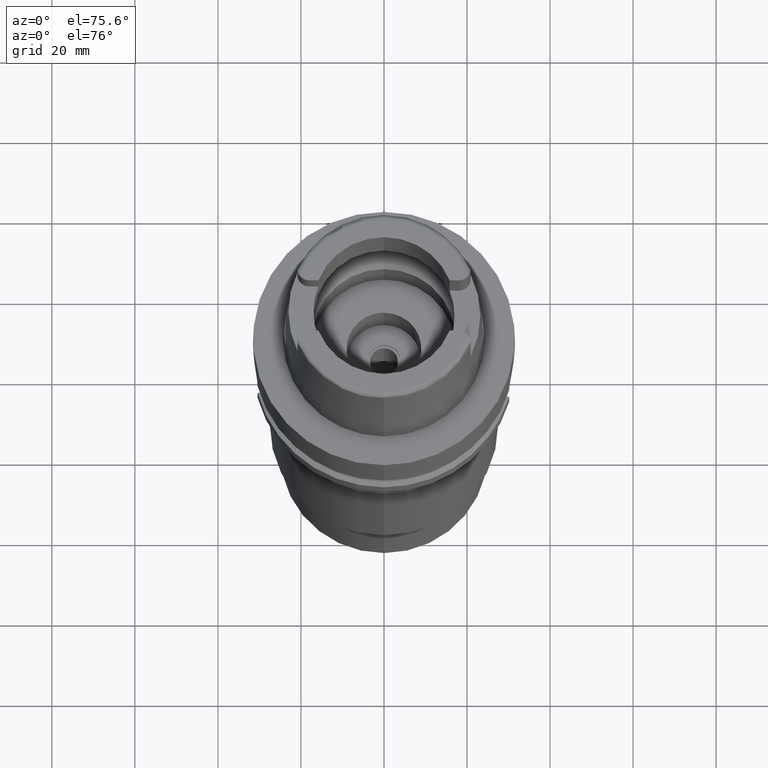
[diagram: clean part render]
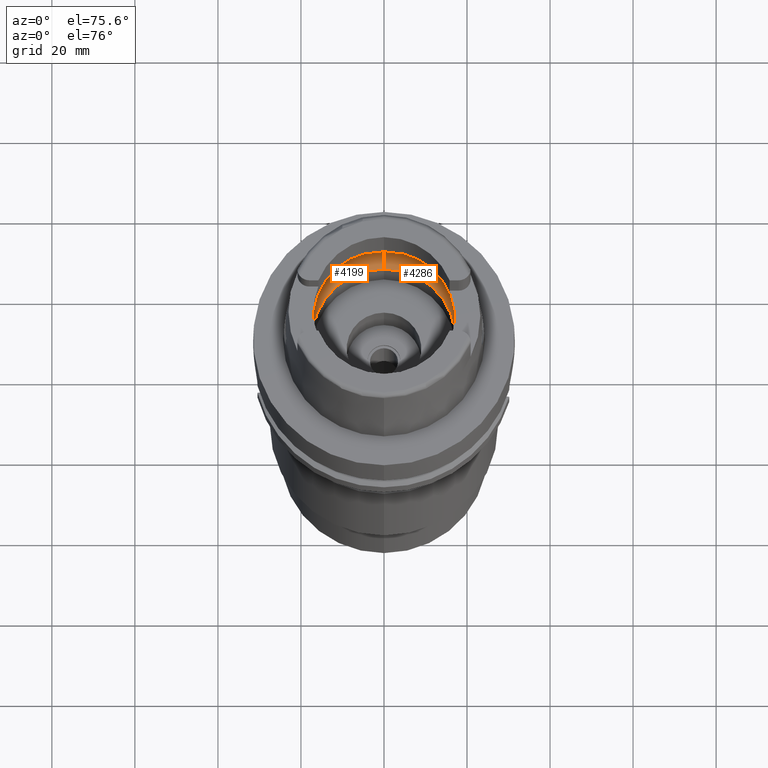
[diagram: same view with one multi-face feature highlighted, each face labeled with its STEP entity id]
A machine part, auxiliary view. The highlighted faces form ONE feature: a constant-radius fillet chain: 2 tangent blend faces with common blend radius 8 mm. The faces share edges in the B-rep.
Their STEP definitions:
[1] entity #4199 (Torus):
#2083=CARTESIAN_POINT('',(-1.984575864666E1,-2.479085262491E0,
6.186348233825E0));
#2084=CARTESIAN_POINT('',(-1.987369637762E1,-2.255436050342E0,
5.989292765742E0));
#2085=CARTESIAN_POINT('',(-1.991331581871E1,-1.759133185383E0,
5.647057889337E0));
#2086=CARTESIAN_POINT('',(-1.994018615095E1,-9.060425565455E-1,
5.323295534197E0));
#2087=CARTESIAN_POINT('',(-1.994501428476E1,-3.022936309386E-1,5.25E0));
#2088=CARTESIAN_POINT('',(-1.994501428476E1,0.E0,5.25E0));
#2093=CARTESIAN_POINT('',(-1.994501428476E1,0.E0,5.25E0));
#2094=CARTESIAN_POINT('',(-1.994501428476E1,3.022931930043E-1,5.25E0));
#2095=CARTESIAN_POINT('',(-1.994018614423E1,9.060414364937E-1,
5.323295523152E0));
#2096=CARTESIAN_POINT('',(-1.991331601589E1,1.759129035713E0,5.647055777419E0));
#2097=CARTESIAN_POINT('',(-1.987369656375E1,2.255434560347E0,5.989291452920E0));
#2098=CARTESIAN_POINT('',(-1.984575864666E1,2.479085262491E0,6.186348233825E0));
#2103=CARTESIAN_POINT('',(0.E0,0.E0,6.186348233825E0));
#2104=DIRECTION('',(0.E0,0.E0,-1.E0));
#2105=DIRECTION('',(-9.922879323328E-1,1.239542631245E-1,0.E0));
#2106=AXIS2_PLACEMENT_3D('',#2103,#2104,#2105);
#2111=CARTESIAN_POINT('',(0.E0,0.E0,1.500000000001E-1));
#2112=DIRECTION('',(0.E0,0.E0,1.E0));
#2113=DIRECTION('',(0.E0,1.E0,0.E0));
#2114=AXIS2_PLACEMENT_3D('',#2111,#2112,#2113);
#2119=CARTESIAN_POINT('',(0.E0,-1.2E1,6.186348233825E0));
#2120=DIRECTION('',(-1.E0,0.E0,0.E0));
#2121=DIRECTION('',(0.E0,-6.5625E-1,-7.545435292281E-1));
#2122=AXIS2_PLACEMENT_3D('',#2119,#2120,#2121);
#2127=CARTESIAN_POINT('',(0.E0,0.E0,6.186348233825E0));
#2128=DIRECTION('',(0.E0,0.E0,-1.E0));
#2129=DIRECTION('',(0.E0,-1.E0,0.E0));
#2130=AXIS2_PLACEMENT_3D('',#2127,#2128,#2129);
#2153=CARTESIAN_POINT('',(-1.984575864666E1,-2.479085262491E0,
6.186348233825E0));
#2253=CARTESIAN_POINT('',(0.E0,1.2E1,6.186348233825E0));
#2254=DIRECTION('',(1.E0,0.E0,0.E0));
#2255=DIRECTION('',(0.E0,6.5625E-1,-7.545435292281E-1));
#2256=AXIS2_PLACEMENT_3D('',#2253,#2254,#2255);
#2429=VERTEX_POINT('',#2153);
#2430=CARTESIAN_POINT('',(0.E0,-2.E1,6.186348233825E0));
#2431=VERTEX_POINT('',#2430);
#2432=CARTESIAN_POINT('',(0.E0,2.E1,6.186348233825E0));
#2433=VERTEX_POINT('',#2432);
#2434=CARTESIAN_POINT('',(-1.984575864666E1,2.479085262490E0,6.186348233825E0));
#2435=VERTEX_POINT('',#2434);
#2436=CARTESIAN_POINT('',(-1.994501428476E1,0.E0,5.25E0));
#2437=VERTEX_POINT('',#2436);
#2442=CARTESIAN_POINT('',(0.E0,1.725E1,1.500000000001E-1));
#2443=VERTEX_POINT('',#2442);
#2444=CARTESIAN_POINT('',(0.E0,-1.725E1,1.500000000001E-1));
#2445=VERTEX_POINT('',#2444);
#4179=CARTESIAN_POINT('',(0.E0,0.E0,6.186348233825E0));
#4180=DIRECTION('',(0.E0,0.E0,1.E0));
#4181=DIRECTION('',(0.E0,1.E0,0.E0));
#4182=AXIS2_PLACEMENT_3D('',#4179,#4180,#4181);
#4183=TOROIDAL_SURFACE('',#4182,1.2E1,8.E0);
#4185=ORIENTED_EDGE('',*,*,#4184,.T.);
#4187=ORIENTED_EDGE('',*,*,#4186,.T.);
#4189=ORIENTED_EDGE('',*,*,#4188,.T.);
#4191=ORIENTED_EDGE('',*,*,#4190,.F.);
#4192=ORIENTED_EDGE('',*,*,#4174,.T.);
#4194=ORIENTED_EDGE('',*,*,#4193,.T.);
#4196=ORIENTED_EDGE('',*,*,#4195,.T.);
#4197=EDGE_LOOP('',(#4185,#4187,#4189,#4191,#4192,#4194,#4196));
#4198=FACE_OUTER_BOUND('',#4197,.F.);
#2089=B_SPLINE_CURVE_WITH_KNOTS('',3,(#2083,#2084,#2085,#2086,#2087,#2088),
.UNSPECIFIED.,.F.,.F.,(4,1,1,4),(0.E0,3.333333333333E-1,6.666666666667E-1,1.E0),
.UNSPECIFIED.);
#2099=B_SPLINE_CURVE_WITH_KNOTS('',3,(#2093,#2094,#2095,#2096,#2097,#2098),
.UNSPECIFIED.,.F.,.F.,(4,1,1,4),(0.E0,3.333333333333E-1,6.666666666667E-1,1.E0),
.UNSPECIFIED.);
#2107=CIRCLE('',#2106,2.E1);
#2115=CIRCLE('',#2114,1.725E1);
#2123=CIRCLE('',#2122,8.E0);
#2131=CIRCLE('',#2130,2.E1);
#2257=CIRCLE('',#2256,8.E0);
#4174=EDGE_CURVE('',#2443,#2445,#2115,.T.);
#4184=EDGE_CURVE('',#2429,#2437,#2089,.T.);
#4186=EDGE_CURVE('',#2437,#2435,#2099,.T.);
#4188=EDGE_CURVE('',#2435,#2433,#2107,.T.);
#4190=EDGE_CURVE('',#2443,#2433,#2257,.T.);
#4193=EDGE_CURVE('',#2445,#2431,#2123,.T.);
#4195=EDGE_CURVE('',#2431,#2429,#2131,.T.);
#4199=ADVANCED_FACE('',(#4198),#4183,.F.);
[2] entity #4286 (Torus):
#2119=CARTESIAN_POINT('',(0.E0,-1.2E1,6.186348233825E0));
#2120=DIRECTION('',(-1.E0,0.E0,0.E0));
#2121=DIRECTION('',(0.E0,-6.5625E-1,-7.545435292281E-1));
#2122=AXIS2_PLACEMENT_3D('',#2119,#2120,#2121);
#2181=CARTESIAN_POINT('',(1.984575864666E1,-2.479085262491E0,6.186348233825E0));
#2208=CARTESIAN_POINT('',(1.984575864666E1,2.479085262491E0,6.186348233825E0));
#2227=CARTESIAN_POINT('',(1.994501428476E1,0.E0,5.25E0));
#2228=CARTESIAN_POINT('',(1.994501428476E1,-3.022957154465E-1,5.25E0));
#2229=CARTESIAN_POINT('',(1.994018609693E1,-9.060474356404E-1,
5.323296439589E0));
#2230=CARTESIAN_POINT('',(1.991331550025E1,-1.759139202252E0,5.647061182125E0));
#2231=CARTESIAN_POINT('',(1.987369610543E1,-2.255438229266E0,5.989294685574E0));
#2232=CARTESIAN_POINT('',(1.984575864666E1,-2.479085262491E0,6.186348233825E0));
#2237=CARTESIAN_POINT('',(0.E0,0.E0,6.186348233825E0));
#2238=DIRECTION('',(0.E0,0.E0,-1.E0));
#2239=DIRECTION('',(9.922879323328E-1,-1.239542631245E-1,0.E0));
#2240=AXIS2_PLACEMENT_3D('',#2237,#2238,#2239);
#2245=CARTESIAN_POINT('',(0.E0,0.E0,1.500000000001E-1));
#2246=DIRECTION('',(0.E0,0.E0,1.E0));
#2247=DIRECTION('',(0.E0,-1.E0,0.E0));
#2248=AXIS2_PLACEMENT_3D('',#2245,#2246,#2247);
#2253=CARTESIAN_POINT('',(0.E0,1.2E1,6.186348233825E0));
#2254=DIRECTION('',(1.E0,0.E0,0.E0));
#2255=DIRECTION('',(0.E0,6.5625E-1,-7.545435292281E-1));
#2256=AXIS2_PLACEMENT_3D('',#2253,#2254,#2255);
#2261=CARTESIAN_POINT('',(0.E0,0.E0,6.186348233825E0));
#2262=DIRECTION('',(0.E0,0.E0,-1.E0));
#2263=DIRECTION('',(0.E0,1.E0,0.E0));
#2264=AXIS2_PLACEMENT_3D('',#2261,#2262,#2263);
#2269=CARTESIAN_POINT('',(1.984575864666E1,2.479085262491E0,6.186348233825E0));
#2270=CARTESIAN_POINT('',(1.987369683552E1,2.255432384732E0,5.989289536004E0));
#2271=CARTESIAN_POINT('',(1.991331633330E1,1.759123026949E0,5.647052493715E0));
#2272=CARTESIAN_POINT('',(1.994018619685E1,9.060366292765E-1,5.323294636829E0));
#2273=CARTESIAN_POINT('',(1.994501428476E1,3.022911403854E-1,5.25E0));
#2274=CARTESIAN_POINT('',(1.994501428476E1,0.E0,5.25E0));
#2430=CARTESIAN_POINT('',(0.E0,-2.E1,6.186348233825E0));
#2431=VERTEX_POINT('',#2430);
#2432=CARTESIAN_POINT('',(0.E0,2.E1,6.186348233825E0));
#2433=VERTEX_POINT('',#2432);
#2438=VERTEX_POINT('',#2181);
#2440=VERTEX_POINT('',#2227);
#2441=VERTEX_POINT('',#2208);
#2442=CARTESIAN_POINT('',(0.E0,1.725E1,1.500000000001E-1));
#2443=VERTEX_POINT('',#2442);
#2444=CARTESIAN_POINT('',(0.E0,-1.725E1,1.500000000001E-1));
#2445=VERTEX_POINT('',#2444);
#4271=CARTESIAN_POINT('',(0.E0,0.E0,6.186348233825E0));
#4272=DIRECTION('',(0.E0,0.E0,1.E0));
#4273=DIRECTION('',(0.E0,1.E0,0.E0));
#4274=AXIS2_PLACEMENT_3D('',#4271,#4272,#4273);
#4275=TOROIDAL_SURFACE('',#4274,1.2E1,8.E0);
#4276=ORIENTED_EDGE('',*,*,#4261,.T.);
#4277=ORIENTED_EDGE('',*,*,#4250,.T.);
#4278=ORIENTED_EDGE('',*,*,#4193,.F.);
#4279=ORIENTED_EDGE('',*,*,#4158,.T.);
#4280=ORIENTED_EDGE('',*,*,#4190,.T.);
#4281=ORIENTED_EDGE('',*,*,#4244,.T.);
#4283=ORIENTED_EDGE('',*,*,#4282,.T.);
#4284=EDGE_LOOP('',(#4276,#4277,#4278,#4279,#4280,#4281,#4283));
#4285=FACE_OUTER_BOUND('',#4284,.F.);
#2123=CIRCLE('',#2122,8.E0);
#2233=B_SPLINE_CURVE_WITH_KNOTS('',3,(#2227,#2228,#2229,#2230,#2231,#2232),
.UNSPECIFIED.,.F.,.F.,(4,1,1,4),(0.E0,3.333333333333E-1,6.666666666667E-1,1.E0),
.UNSPECIFIED.);
#2241=CIRCLE('',#2240,2.E1);
#2249=CIRCLE('',#2248,1.725E1);
#2257=CIRCLE('',#2256,8.E0);
#2265=CIRCLE('',#2264,2.E1);
#2275=B_SPLINE_CURVE_WITH_KNOTS('',3,(#2269,#2270,#2271,#2272,#2273,#2274),
.UNSPECIFIED.,.F.,.F.,(4,1,1,4),(0.E0,3.333333333333E-1,6.666666666667E-1,1.E0),
.UNSPECIFIED.);
#4158=EDGE_CURVE('',#2445,#2443,#2249,.T.);
#4190=EDGE_CURVE('',#2443,#2433,#2257,.T.);
#4193=EDGE_CURVE('',#2445,#2431,#2123,.T.);
#4244=EDGE_CURVE('',#2433,#2441,#2265,.T.);
#4250=EDGE_CURVE('',#2438,#2431,#2241,.T.);
#4261=EDGE_CURVE('',#2440,#2438,#2233,.T.);
#4282=EDGE_CURVE('',#2441,#2440,#2275,.T.);
#4286=ADVANCED_FACE('',(#4285),#4275,.F.);